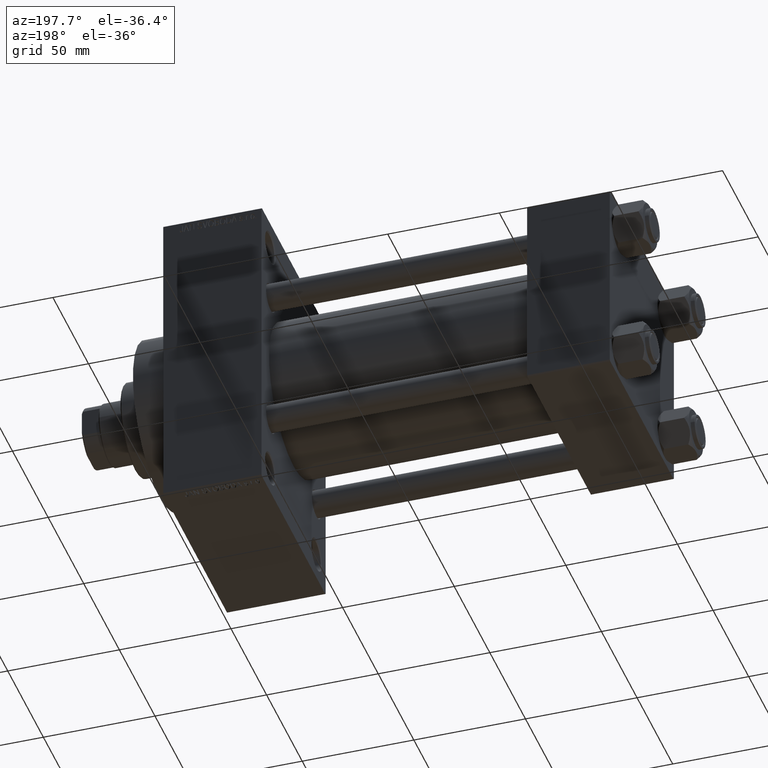
[diagram: clean part render]
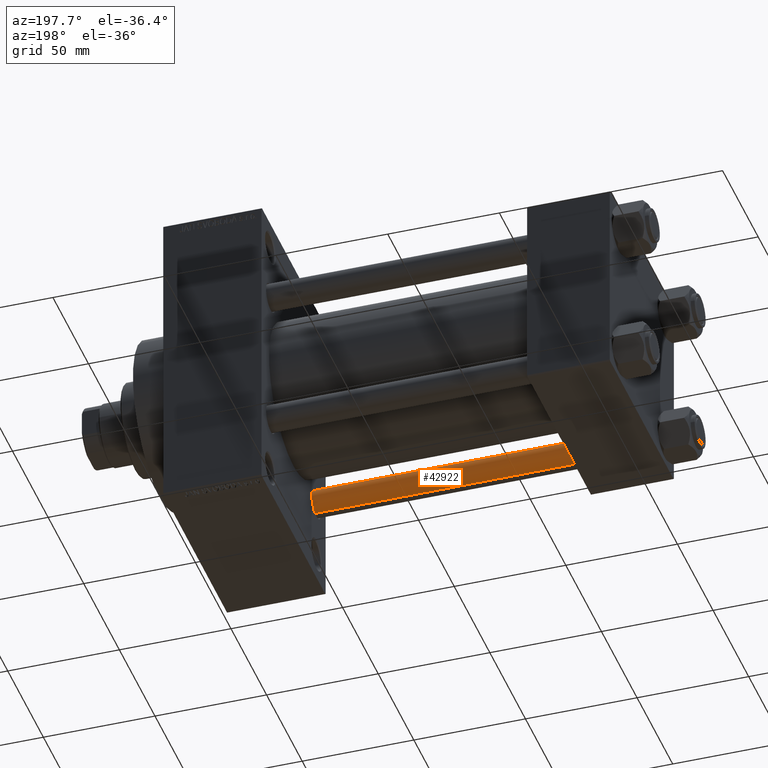
[diagram: same view with one face highlighted and labeled with its STEP entity id]
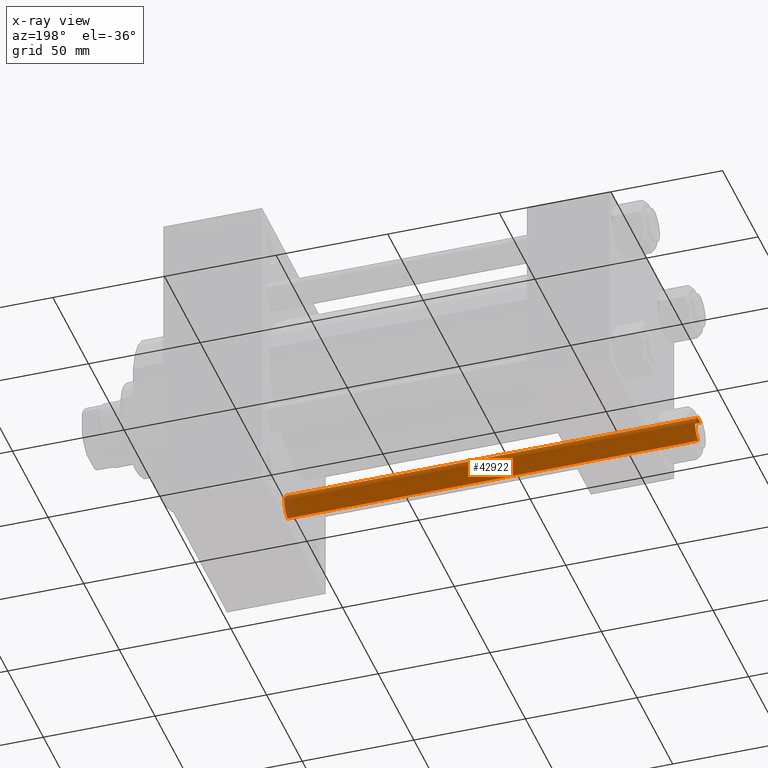
[diagram: x-ray of the same camera — body ghosted, the highlighted face saturated]
A machine part, auxiliary view. The second image highlights one B-rep face of the part: STEP entity #42922.
The next image is the same camera in x-ray: the body ghosted, the highlighted face saturated — about 2% of this face is hidden behind the body in this view.
In plain terms, the highlighted cylindrical surface (edge-blend (fillet) strip) has radius 6 mm, axis along (-1, 0, 0).
Its self-contained STEP definition (entity closure, byte-faithful):
#60 = EDGE_CURVE ( 'NONE', #46532, #3234, #45350, .T. ) ;
#163 = EDGE_CURVE ( 'NONE', #5610, #46532, #34457, .T. ) ;
#756 = VECTOR ( 'NONE', #16604, 1000.000000000000000 ) ;
#1126 = DIRECTION ( 'NONE',  ( -0.000000000000000000, -0.000000000000000000, 1.000000000000000000 ) ) ;
#2233 = VERTEX_POINT ( 'NONE', #33860 ) ;
#2917 = ORIENTED_EDGE ( 'NONE', *, *, #60, .T. ) ;
#3234 = VERTEX_POINT ( 'NONE', #11183 ) ;
#3552 = EDGE_LOOP ( 'NONE', ( #46284, #23198, #2917, #38159 ) ) ;
#4645 = CIRCLE ( 'NONE', #23802, 6.000000000000000888 ) ;
#5610 = VERTEX_POINT ( 'NONE', #18955 ) ;
#8428 = DIRECTION ( 'NONE',  ( -1.000000000000000000, 0.000000000000000000, 0.000000000000000000 ) ) ;
#8808 = DIRECTION ( 'NONE',  ( 1.000000000000000000, 0.000000000000000000, 0.000000000000000000 ) ) ;
#11183 = CARTESIAN_POINT ( 'NONE',  ( -6.000000000000000888, 0.000000000000000000, 0.5000000000000281997 ) ) ;
#16604 = DIRECTION ( 'NONE',  ( -0.000000000000000000, -0.000000000000000000, -1.000000000000000000 ) ) ;
#18854 = LINE ( 'NONE', #22204, #41670 ) ;
#18955 = CARTESIAN_POINT ( 'NONE',  ( 6.000000000000000888, 7.347880794884120722E-16, 184.5000000000000000 ) ) ;
#19615 = AXIS2_PLACEMENT_3D ( 'NONE', #27135, #30258, #8428 ) ;
#22204 = CARTESIAN_POINT ( 'NONE',  ( 6.000000000000000888, 7.347880794884120722E-16, 185.0000000000000000 ) ) ;
#22922 = DIRECTION ( 'NONE',  ( -0.000000000000000000, -0.000000000000000000, -1.000000000000000000 ) ) ;
#23198 = ORIENTED_EDGE ( 'NONE', *, *, #163, .T. ) ;
#23802 = AXIS2_PLACEMENT_3D ( 'NONE', #41631, #1126, #8808 ) ;
#24126 = DIRECTION ( 'NONE',  ( 1.000000000000000000, 0.000000000000000000, 0.000000000000000000 ) ) ;
#26229 = EDGE_CURVE ( 'NONE', #3234, #2233, #4645, .T. ) ;
#27135 = CARTESIAN_POINT ( 'NONE',  ( 0.000000000000000000, 0.000000000000000000, 185.0000000000000000 ) ) ;
#27581 = AXIS2_PLACEMENT_3D ( 'NONE', #39829, #36250, #24126 ) ;
#30258 = DIRECTION ( 'NONE',  ( -0.000000000000000000, -0.000000000000000000, -1.000000000000000000 ) ) ;
#30497 = CARTESIAN_POINT ( 'NONE',  ( -6.000000000000000888, 0.000000000000000000, 185.0000000000000000 ) ) ;
#31819 = CARTESIAN_POINT ( 'NONE',  ( -6.000000000000000888, 0.000000000000000000, 184.5000000000000000 ) ) ;
#33860 = CARTESIAN_POINT ( 'NONE',  ( 6.000000000000000888, 7.347880794884120722E-16, 0.5000000000000281997 ) ) ;
#34457 = CIRCLE ( 'NONE', #27581, 6.000000000000000888 ) ;
#35411 = EDGE_CURVE ( 'NONE', #5610, #2233, #18854, .T. ) ;
#36250 = DIRECTION ( 'NONE',  ( 0.000000000000000000, 0.000000000000000000, -1.000000000000000000 ) ) ;
#37909 = CYLINDRICAL_SURFACE ( 'NONE', #19615, 6.000000000000000888 ) ;
#38159 = ORIENTED_EDGE ( 'NONE', *, *, #26229, .T. ) ;
#39829 = CARTESIAN_POINT ( 'NONE',  ( 0.000000000000000000, 0.000000000000000000, 184.5000000000000000 ) ) ;
#41502 = FACE_OUTER_BOUND ( 'NONE', #3552, .T. ) ;
#41631 = CARTESIAN_POINT ( 'NONE',  ( 0.000000000000000000, 0.000000000000000000, 0.5000000000000281997 ) ) ;
#41670 = VECTOR ( 'NONE', #22922, 1000.000000000000000 ) ;
#42922 = ADVANCED_FACE ( 'NONE', ( #41502 ), #37909, .T. ) ;
#45350 = LINE ( 'NONE', #30497, #756 ) ;
#46284 = ORIENTED_EDGE ( 'NONE', *, *, #35411, .F. ) ;
#46532 = VERTEX_POINT ( 'NONE', #31819 ) ;